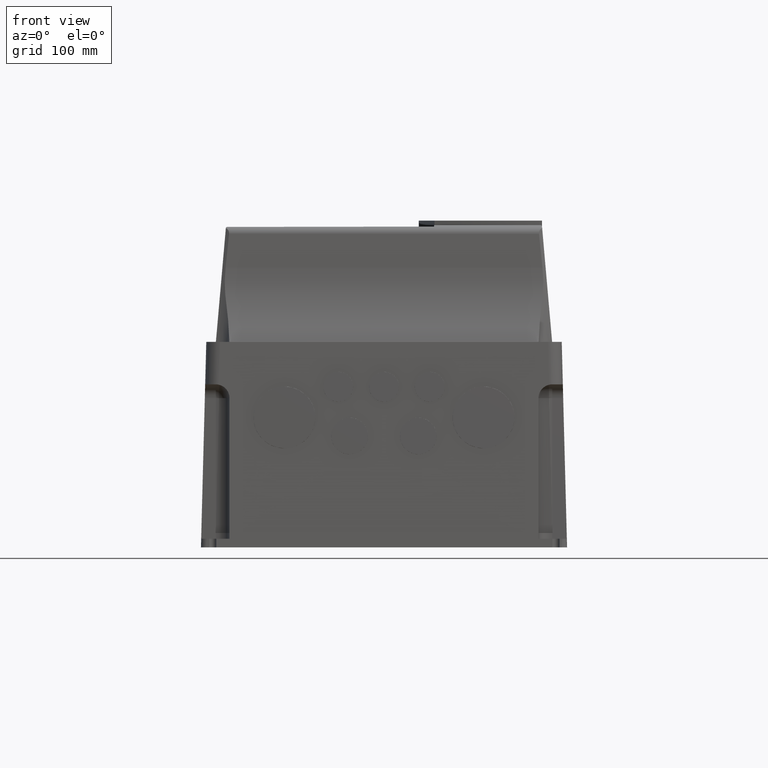
[diagram: clean part render]
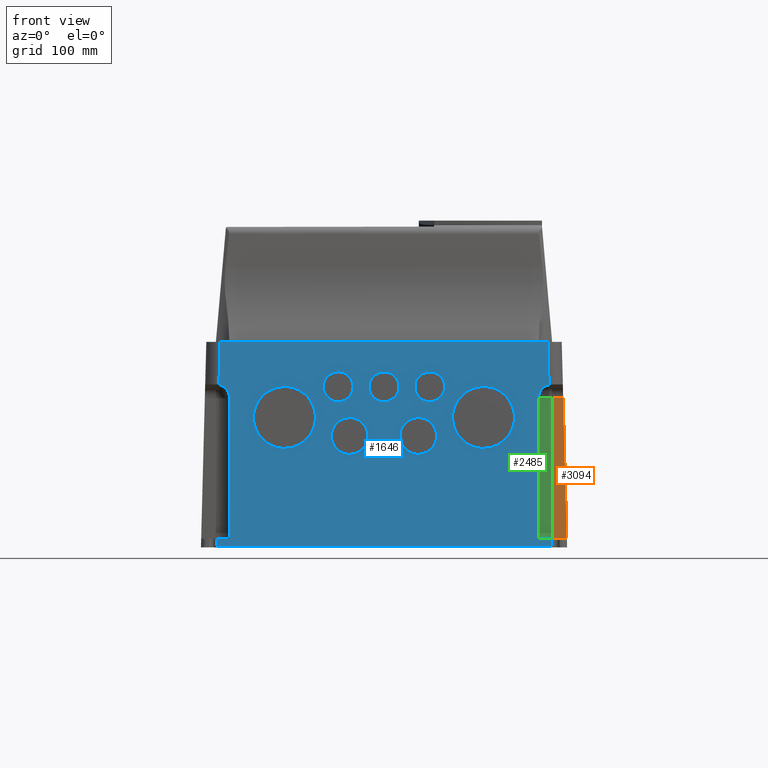
[diagram: same view with three faces highlighted in distinct colors, each labeled with its STEP entity id]
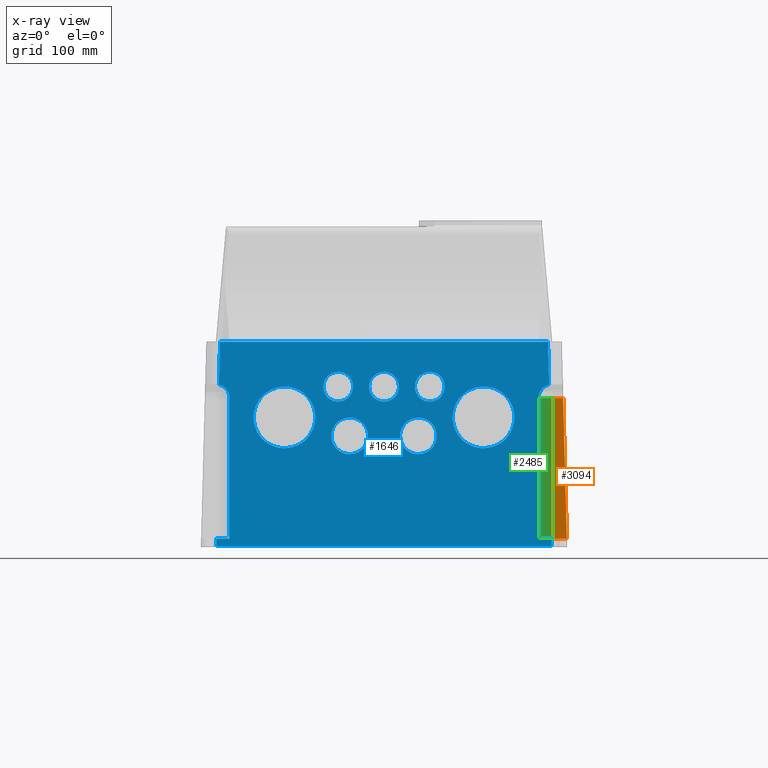
[diagram: x-ray of the same camera — body ghosted, the three highlighted faces saturated]
A machine part, front view with three faces highlighted in distinct colors.
The next image is the same camera in x-ray (body ghosted, the three faces saturated) — at least one of them is partly hidden behind the body in this view.
Their STEP definitions:

[orange] entity #3094 — the highlighted planar face has unit normal (0, 1, 0).
#22 = VECTOR ( 'NONE', #3410, 39.37007874015748143 ) ;
#110 = VECTOR ( 'NONE', #546, 39.37007874015748143 ) ;
#182 = LINE ( 'NONE', #2601, #1906 ) ;
#201 = EDGE_CURVE ( 'NONE', #3391, #3291, #182, .T. ) ;
#333 = EDGE_CURVE ( 'NONE', #3291, #3249, #3661, .T. ) ;
#417 = DIRECTION ( 'NONE',  ( -0.02601673063986719228, 0.000000000000000000, 0.9996615075748453982 ) ) ;
#491 = CARTESIAN_POINT ( 'NONE',  ( 5.787401574803155313, -8.346456692913383435, 5.137795275590551825 ) ) ;
#530 = ORIENTED_EDGE ( 'NONE', *, *, #333, .F. ) ;
#546 = DIRECTION ( 'NONE',  ( 0.000000000000000000, -0.000000000000000000, 1.000000000000000000 ) ) ;
#674 = DIRECTION ( 'NONE',  ( 0.000000000000000000, -0.000000000000000000, 1.000000000000000000 ) ) ;
#723 = EDGE_LOOP ( 'NONE', ( #3799, #530, #1268, #1525 ) ) ;
#993 = PLANE ( 'NONE',  #997 ) ;
#997 = AXIS2_PLACEMENT_3D ( 'NONE', #2235, #3465, #674 ) ;
#1013 = EDGE_CURVE ( 'NONE', #3391, #2149, #3182, .T. ) ;
#1055 = CARTESIAN_POINT ( 'NONE',  ( 6.299212598425197207, -8.346456692913383435, 0.000000000000000000 ) ) ;
#1187 = EDGE_CURVE ( 'NONE', #2149, #3249, #3082, .T. ) ;
#1268 = ORIENTED_EDGE ( 'NONE', *, *, #201, .F. ) ;
#1452 = CARTESIAN_POINT ( 'NONE',  ( 5.787401574803155313, -8.346456692913383435, 0.2952755905511812995 ) ) ;
#1525 = ORIENTED_EDGE ( 'NONE', *, *, #1013, .T. ) ;
#1590 = CARTESIAN_POINT ( 'NONE',  ( 0.000000000000000000, -8.346456692913383435, 5.137795275590551825 ) ) ;
#1845 = CARTESIAN_POINT ( 'NONE',  ( 6.165498701516134439, -8.346456692913383435, 5.137795275590551825 ) ) ;
#1906 = VECTOR ( 'NONE', #2947, 39.37007874015748143 ) ;
#2070 = CARTESIAN_POINT ( 'NONE',  ( 5.787401574803155313, -8.346456692913383435, 5.610236220472442525 ) ) ;
#2149 = VERTEX_POINT ( 'NONE', #1845 ) ;
#2235 = CARTESIAN_POINT ( 'NONE',  ( 5.314960629921263724, -8.346456692913383435, 5.610236220472442525 ) ) ;
#2601 = CARTESIAN_POINT ( 'NONE',  ( 0.000000000000000000, -8.346456692913383435, 0.2952755905511810774 ) ) ;
#2705 = VECTOR ( 'NONE', #417, 39.37007874015748143 ) ;
#2745 = CARTESIAN_POINT ( 'NONE',  ( 6.291527891706285125, -8.346456692913383435, 0.2952755905511811330 ) ) ;
#2947 = DIRECTION ( 'NONE',  ( -1.000000000000000000, -0.000000000000000000, 0.000000000000000000 ) ) ;
#3082 = LINE ( 'NONE', #1590, #22 ) ;
#3094 = ADVANCED_FACE ( 'NONE', ( #3770 ), #993, .F. ) ;
#3182 = LINE ( 'NONE', #1055, #2705 ) ;
#3249 = VERTEX_POINT ( 'NONE', #491 ) ;
#3291 = VERTEX_POINT ( 'NONE', #1452 ) ;
#3391 = VERTEX_POINT ( 'NONE', #2745 ) ;
#3410 = DIRECTION ( 'NONE',  ( -1.000000000000000000, 0.000000000000000000, 0.000000000000000000 ) ) ;
#3465 = DIRECTION ( 'NONE',  ( 0.000000000000000000, 1.000000000000000000, 0.000000000000000000 ) ) ;
#3661 = LINE ( 'NONE', #2070, #110 ) ;
#3770 = FACE_OUTER_BOUND ( 'NONE', #723, .T. ) ;
#3799 = ORIENTED_EDGE ( 'NONE', *, *, #1187, .T. ) ;

[blue] entity #1646 — the highlighted planar face has unit normal (0, 0.9996, -0.0265).
#7 = DIRECTION ( 'NONE',  ( 0.000000000000000000, 0.02654542093371037650, 0.9996476082237439886 ) ) ;
#48 = CARTESIAN_POINT ( 'NONE',  ( -1.025685345641064394, -9.171454318879906253, 6.039906444342086012 ) ) ;
#58 = CARTESIAN_POINT ( 'NONE',  ( -1.574803149606299302, -9.198691166166481636, 5.014221098701022505 ) ) ;
#74 = EDGE_CURVE ( 'NONE', #910, #660, #3861, .T. ) ;
#89 = ORIENTED_EDGE ( 'NONE', *, *, #2587, .F. ) ;
#104 = EDGE_CURVE ( 'NONE', #321, #797, #2767, .T. ) ;
#128 = EDGE_CURVE ( 'NONE', #660, #910, #703, .T. ) ;
#137 =( BOUNDED_CURVE ( )  B_SPLINE_CURVE ( 3, ( #447, #2929, #1662, #3825 ),
 .UNSPECIFIED., .F., .T. ) 
 B_SPLINE_CURVE_WITH_KNOTS ( ( 4, 4 ),
 ( 3.368230027724629316, 4.712388980384689674 ),
 .UNSPECIFIED. ) 
 CURVE ( )  GEOMETRIC_REPRESENTATION_ITEM ( )  RATIONAL_B_SPLINE_CURVE ( ( 1.000000000000000000, 0.8550190976276198507, 0.8550190976276198507, 1.000000000000000000 ) ) 
 REPRESENTATION_ITEM ( '' )  );
#192 = EDGE_CURVE ( 'NONE', #2834, #2905, #1392, .T. ) ;
#230 = EDGE_CURVE ( 'NONE', #3176, #956, #1641, .T. ) ;
#248 = FACE_BOUND ( 'NONE', #780, .T. ) ;
#271 = ORIENTED_EDGE ( 'NONE', *, *, #1536, .F. ) ;
#274 = CARTESIAN_POINT ( 'NONE',  ( -11.81102362204724443, -9.324001719452017056, 0.2952755905511803003 ) ) ;
#321 = VERTEX_POINT ( 'NONE', #1463 ) ;
#331 = VERTEX_POINT ( 'NONE', #847 ) ;
#352 = CARTESIAN_POINT ( 'NONE',  ( -5.767716535433065062, -9.324001719452017056, 0.2952755905511807999 ) ) ;
#356 = CARTESIAN_POINT ( 'NONE',  ( -3.425196850393701808, -9.184823102415823115, 5.536464720064616429 ) ) ;
#374 = CARTESIAN_POINT ( 'NONE',  ( -1.297149300028227481, -9.241332934007154165, 3.408417169699141436 ) ) ;
#383 = EDGE_LOOP ( 'NONE', ( #518, #2678 ) ) ;
#399 =( BOUNDED_CURVE ( )  B_SPLINE_CURVE ( 3, ( #2244, #1039, #721, #3758 ),
 .UNSPECIFIED., .F., .F. ) 
 B_SPLINE_CURVE_WITH_KNOTS ( ( 4, 4 ),
 ( 3.141592653589793116, 6.283185307179586232 ),
 .UNSPECIFIED. ) 
 CURVE ( )  GEOMETRIC_REPRESENTATION_ITEM ( )  RATIONAL_B_SPLINE_CURVE ( ( 1.000000000000000000, 0.3333333333333333703, 0.3333333333333333703, 1.000000000000000000 ) ) 
 REPRESENTATION_ITEM ( '' )  );
#413 = CARTESIAN_POINT ( 'NONE',  ( 1.574803149606299080, -9.198691166166481636, 5.014221098701022505 ) ) ;
#426 = VERTEX_POINT ( 'NONE', #3686 ) ;
#434 = VERTEX_POINT ( 'NONE', #2227 ) ;
#447 = CARTESIAN_POINT ( 'NONE',  ( 5.681243071652172461, -9.183184938108572837, 5.598154720600247991 ) ) ;
#450 = VERTEX_POINT ( 'NONE', #722 ) ;
#482 = CARTESIAN_POINT ( 'NONE',  ( -5.681243071652176013, -9.183184938108572837, 5.598154720600250656 ) ) ;
#485 = CARTESIAN_POINT ( 'NONE',  ( -2.443008180286734721, -9.246782497524298705, 3.203197476653807385 ) ) ;
#513 = EDGE_CURVE ( 'NONE', #331, #3129, #3008, .T. ) ;
#518 = ORIENTED_EDGE ( 'NONE', *, *, #104, .F. ) ;
#529 =( BOUNDED_CURVE ( )  B_SPLINE_CURVE ( 3, ( #2435, #374, #2141, #356 ),
 .UNSPECIFIED., .F., .F. ) 
 B_SPLINE_CURVE_WITH_KNOTS ( ( 4, 4 ),
 ( 3.141592653589793560, 6.283185307179586232 ),
 .UNSPECIFIED. ) 
 CURVE ( )  GEOMETRIC_REPRESENTATION_ITEM ( )  RATIONAL_B_SPLINE_CURVE ( ( 1.000000000000000000, 0.3333333333333335369, 0.3333333333333335369, 1.000000000000000000 ) ) 
 REPRESENTATION_ITEM ( '' )  );
#590 = CARTESIAN_POINT ( 'NONE',  ( 0.5491178039652351295, -9.198691166166481636, 5.014221098701022505 ) ) ;
#592 = FACE_BOUND ( 'NONE', #1625, .T. ) ;
#606 = CARTESIAN_POINT ( 'NONE',  ( 1.574803149606299080, -9.171454318879906253, 6.039906444342086900 ) ) ;
#637 = DIRECTION ( 'NONE',  ( 0.000000000000000000, 0.02654542093371037650, 0.9996476082237439886 ) ) ;
#647 = CARTESIAN_POINT ( 'NONE',  ( 3.425196850393701808, -9.184823102415823115, 5.536464720064615541 ) ) ;
#649 = CARTESIAN_POINT ( 'NONE',  ( -1.574803149606299302, -9.171454318879906253, 6.039906444342086900 ) ) ;
#650 = EDGE_CURVE ( 'NONE', #2492, #1364, #2924, .T. ) ;
#660 = VERTEX_POINT ( 'NONE', #2318 ) ;
#687 = CARTESIAN_POINT ( 'NONE',  ( -0.08080345587728490764, -9.246782497524298705, 3.203197476653807829 ) ) ;
#703 =( BOUNDED_CURVE ( )  B_SPLINE_CURVE ( 3, ( #986, #2786, #3440, #649 ),
 .UNSPECIFIED., .F., .F. ) 
 B_SPLINE_CURVE_WITH_KNOTS ( ( 4, 4 ),
 ( 3.141592653589793560, 6.283185307179586232 ),
 .UNSPECIFIED. ) 
 CURVE ( )  GEOMETRIC_REPRESENTATION_ITEM ( )  RATIONAL_B_SPLINE_CURVE ( ( 1.000000000000000000, 0.3333333333333335369, 0.3333333333333335369, 1.000000000000000000 ) ) 
 REPRESENTATION_ITEM ( '' )  );
#721 = CARTESIAN_POINT ( 'NONE',  ( 2.443008180286732944, -9.213272867886704631, 4.465103294735817130 ) ) ;
#722 = CARTESIAN_POINT ( 'NONE',  ( -3.425196850393701808, -9.241332934007154165, 3.408417169699140992 ) ) ;
#725 = LINE ( 'NONE', #3236, #2788 ) ;
#747 = CARTESIAN_POINT ( 'NONE',  ( -5.767716535433065062, -9.324001719452017056, 0.2952755905511810774 ) ) ;
#752 = ORIENTED_EDGE ( 'NONE', *, *, #128, .F. ) ;
#778 = CARTESIAN_POINT ( 'NONE',  ( -5.314960629921258395, -9.195409681256116130, 5.137795275590551825 ) ) ;
#780 = EDGE_LOOP ( 'NONE', ( #1854, #2263 ) ) ;
#797 = VERTEX_POINT ( 'NONE', #2736 ) ;
#823 = CARTESIAN_POINT ( 'NONE',  ( -5.314960629921258395, -9.189319328777544982, 5.367145802886635231 ) ) ;
#847 = CARTESIAN_POINT ( 'NONE',  ( 1.574803149606299080, -9.171454318879906253, 6.039906444342086900 ) ) ;
#852 = FACE_BOUND ( 'NONE', #1438, .T. ) ;
#868 = VECTOR ( 'NONE', #3752, 39.37007874015748143 ) ;
#904 = CARTESIAN_POINT ( 'NONE',  ( 2.600488495247363030, -9.171454318879906253, 6.039906444342086012 ) ) ;
#910 = VERTEX_POINT ( 'NONE', #1537 ) ;
#956 = VERTEX_POINT ( 'NONE', #1355 ) ;
#969 = CARTESIAN_POINT ( 'NONE',  ( 1.181102362204723866, -9.213272867886704631, 4.465103294735817130 ) ) ;
#986 = CARTESIAN_POINT ( 'NONE',  ( -1.574803149606299302, -9.198691166166481636, 5.014221098701022505 ) ) ;
#1025 = CARTESIAN_POINT ( 'NONE',  ( -2.600488495247363474, -9.198691166166481636, 5.014221098701022505 ) ) ;
#1027 = VERTEX_POINT ( 'NONE', #3892 ) ;
#1039 = CARTESIAN_POINT ( 'NONE',  ( 2.443008180286732944, -9.246782497524298705, 3.203197476653807829 ) ) ;
#1040 = CARTESIAN_POINT ( 'NONE',  ( 5.642914961523374906, -9.144077412350272382, 7.070866141732283339 ) ) ;
#1063 = ORIENTED_EDGE ( 'NONE', *, *, #192, .F. ) ;
#1075 = LINE ( 'NONE', #3524, #2397 ) ;
#1105 = ORIENTED_EDGE ( 'NONE', *, *, #230, .T. ) ;
#1140 = EDGE_CURVE ( 'NONE', #450, #1530, #529, .T. ) ;
#1150 = CARTESIAN_POINT ( 'NONE',  ( -1.181102362204724976, -9.213272867886704631, 4.465103294735818018 ) ) ;
#1156 = CARTESIAN_POINT ( 'NONE',  ( -3.425196850393701808, -9.184823102415823115, 5.536464720064616429 ) ) ;
#1163 = CARTESIAN_POINT ( 'NONE',  ( -1.181102362204724754, -9.246782497524296929, 3.203197476653807385 ) ) ;
#1202 = DIRECTION ( 'NONE',  ( 1.000000000000000000, -0.000000000000000000, 0.000000000000000000 ) ) ;
#1216 = LINE ( 'NONE', #274, #3305 ) ;
#1222 = LINE ( 'NONE', #1562, #1247 ) ;
#1247 = VECTOR ( 'NONE', #1202, 39.37007874015748143 ) ;
#1257 = LINE ( 'NONE', #2477, #2854 ) ;
#1277 = CARTESIAN_POINT ( 'NONE',  ( -1.025685345641064394, -9.198691166166481636, 5.014221098701022505 ) ) ;
#1287 = CARTESIAN_POINT ( 'NONE',  ( -2.600488495247364806, -9.171454318879906253, 6.039906444342086900 ) ) ;
#1306 = VERTEX_POINT ( 'NONE', #3334 ) ;
#1320 = ORIENTED_EDGE ( 'NONE', *, *, #3644, .F. ) ;
#1333 = CARTESIAN_POINT ( 'NONE',  ( -1.181102362204724754, -9.246782497524296929, 3.203197476653807385 ) ) ;
#1355 = CARTESIAN_POINT ( 'NONE',  ( -5.767716535433065062, -9.330708661417324024, 0.04270553295609030853 ) ) ;
#1364 = VERTEX_POINT ( 'NONE', #1820 ) ;
#1388 = VERTEX_POINT ( 'NONE', #2440 ) ;
#1390 = ORIENTED_EDGE ( 'NONE', *, *, #513, .F. ) ;
#1392 =( BOUNDED_CURVE ( )  B_SPLINE_CURVE ( 3, ( #1988, #2928, #2264, #1661 ),
 .UNSPECIFIED., .F., .F. ) 
 B_SPLINE_CURVE_WITH_KNOTS ( ( 4, 4 ),
 ( 3.141592653589793116, 6.283185307179586232 ),
 .UNSPECIFIED. ) 
 CURVE ( )  GEOMETRIC_REPRESENTATION_ITEM ( )  RATIONAL_B_SPLINE_CURVE ( ( 1.000000000000000000, 0.3333333333333333703, 0.3333333333333333703, 1.000000000000000000 ) ) 
 REPRESENTATION_ITEM ( '' )  );
#1411 = FACE_BOUND ( 'NONE', #3488, .T. ) ;
#1412 = CARTESIAN_POINT ( 'NONE',  ( 3.425196850393701808, -9.241332934007154165, 3.408417169699141880 ) ) ;
#1438 = EDGE_LOOP ( 'NONE', ( #1990, #1063 ) ) ;
#1463 = CARTESIAN_POINT ( 'NONE',  ( 1.181102362204723866, -9.213272867886704631, 4.465103294735817130 ) ) ;
#1512 = CARTESIAN_POINT ( 'NONE',  ( 3.425196850393701808, -9.184823102415823115, 5.536464720064615541 ) ) ;
#1530 = VERTEX_POINT ( 'NONE', #1772 ) ;
#1536 = EDGE_CURVE ( 'NONE', #1659, #2813, #1933, .T. ) ;
#1537 = CARTESIAN_POINT ( 'NONE',  ( -1.574803149606299302, -9.171454318879906253, 6.039906444342086900 ) ) ;
#1562 = CARTESIAN_POINT ( 'NONE',  ( -11.81102362204724443, -9.144077412350272382, 7.070866141732283339 ) ) ;
#1564 = AXIS2_PLACEMENT_3D ( 'NONE', #3729, #2215, #7 ) ;
#1566 = CARTESIAN_POINT ( 'NONE',  ( 1.181102362204724088, -9.246782497524296929, 3.203197476653807385 ) ) ;
#1583 = VECTOR ( 'NONE', #3859, 39.37007874015748143 ) ;
#1623 = EDGE_CURVE ( 'NONE', #1530, #450, #3818, .T. ) ;
#1625 = EDGE_LOOP ( 'NONE', ( #3206, #752 ) ) ;
#1641 = LINE ( 'NONE', #747, #1583 ) ;
#1646 = ADVANCED_FACE ( 'NONE', ( #3910, #248, #2370, #3605, #592, #852, #3304, #1411 ), #1808, .F. ) ;
#1659 = VERTEX_POINT ( 'NONE', #1512 ) ;
#1661 = CARTESIAN_POINT ( 'NONE',  ( -2.646670146222828125E-16, -9.171454318879906253, 6.039906444342086900 ) ) ;
#1662 = CARTESIAN_POINT ( 'NONE',  ( 5.314960629921264612, -9.189319328777544982, 5.367145802886630790 ) ) ;
#1687 = ORIENTED_EDGE ( 'NONE', *, *, #2248, .F. ) ;
#1698 = EDGE_CURVE ( 'NONE', #434, #1027, #2766, .T. ) ;
#1772 = CARTESIAN_POINT ( 'NONE',  ( -3.425196850393701808, -9.184823102415823115, 5.536464720064616429 ) ) ;
#1808 = PLANE ( 'NONE',  #1564 ) ;
#1817 = VERTEX_POINT ( 'NONE', #3153 ) ;
#1818 = VECTOR ( 'NONE', #3659, 39.37007874015748143 ) ;
#1820 = CARTESIAN_POINT ( 'NONE',  ( 5.681243071652172461, -9.183184938108572837, 5.598154720600247991 ) ) ;
#1854 = ORIENTED_EDGE ( 'NONE', *, *, #1623, .F. ) ;
#1856 = EDGE_LOOP ( 'NONE', ( #1390, #1687 ) ) ;
#1868 = VERTEX_POINT ( 'NONE', #3922 ) ;
#1905 = ORIENTED_EDGE ( 'NONE', *, *, #2237, .F. ) ;
#1933 =( BOUNDED_CURVE ( )  B_SPLINE_CURVE ( 3, ( #2354, #2389, #3326, #3628 ),
 .UNSPECIFIED., .F., .F. ) 
 B_SPLINE_CURVE_WITH_KNOTS ( ( 4, 4 ),
 ( 0.000000000000000000, 3.141592653589793560 ),
 .UNSPECIFIED. ) 
 CURVE ( )  GEOMETRIC_REPRESENTATION_ITEM ( )  RATIONAL_B_SPLINE_CURVE ( ( 1.000000000000000000, 0.3333333333333332038, 0.3333333333333332038, 1.000000000000000000 ) ) 
 REPRESENTATION_ITEM ( '' )  );
#1951 = DIRECTION ( 'NONE',  ( 0.02600756876027013678, 0.02653644183825283262, 0.9993094733973778565 ) ) ;
#1975 = ORIENTED_EDGE ( 'NONE', *, *, #2213, .F. ) ;
#1988 = CARTESIAN_POINT ( 'NONE',  ( -2.018619008486990307E-16, -9.198691166166481636, 5.014221098701022505 ) ) ;
#1990 = ORIENTED_EDGE ( 'NONE', *, *, #3172, .F. ) ;
#1996 = DIRECTION ( 'NONE',  ( 1.000000000000000000, -0.000000000000000000, 0.000000000000000000 ) ) ;
#2018 = CARTESIAN_POINT ( 'NONE',  ( -2.018619008486990307E-16, -9.198691166166481636, 5.014221098701022505 ) ) ;
#2033 = EDGE_LOOP ( 'NONE', ( #1105, #3595, #2415, #89, #1905, #1320, #3417, #2114, #3067, #2844, #3803, #2778 ) ) ;
#2057 = CARTESIAN_POINT ( 'NONE',  ( -5.553244400759178134, -9.241332934007154165, 3.408417169699140103 ) ) ;
#2058 = EDGE_CURVE ( 'NONE', #2731, #3046, #2172, .T. ) ;
#2094 = EDGE_CURVE ( 'NONE', #3046, #2731, #2986, .T. ) ;
#2109 = CARTESIAN_POINT ( 'NONE',  ( 5.553244400759173693, -9.241332934007154165, 3.408417169699141880 ) ) ;
#2114 = ORIENTED_EDGE ( 'NONE', *, *, #2144, .F. ) ;
#2128 = CARTESIAN_POINT ( 'NONE',  ( 5.314960629921262836, -9.144077412350272382, 7.070866141732283339 ) ) ;
#2141 = CARTESIAN_POINT ( 'NONE',  ( -1.297149300028227925, -9.184823102415821339, 5.536464720064616429 ) ) ;
#2144 = EDGE_CURVE ( 'NONE', #1817, #2492, #1222, .T. ) ;
#2172 =( BOUNDED_CURVE ( )  B_SPLINE_CURVE ( 3, ( #2600, #2988, #3840, #1150 ),
 .UNSPECIFIED., .F., .T. ) 
 B_SPLINE_CURVE_WITH_KNOTS ( ( 4, 4 ),
 ( 3.141592653589793116, 6.283185307179586232 ),
 .UNSPECIFIED. ) 
 CURVE ( )  GEOMETRIC_REPRESENTATION_ITEM ( )  RATIONAL_B_SPLINE_CURVE ( ( 1.000000000000000000, 0.3333333333333333703, 0.3333333333333333703, 1.000000000000000000 ) ) 
 REPRESENTATION_ITEM ( '' )  );
#2178 = CARTESIAN_POINT ( 'NONE',  ( -2.646670146222828125E-16, -9.171454318879906253, 6.039906444342086900 ) ) ;
#2188 = CARTESIAN_POINT ( 'NONE',  ( -0.08080345587728476886, -9.213272867886704631, 4.465103294735817130 ) ) ;
#2213 = EDGE_CURVE ( 'NONE', #2813, #1659, #2291, .T. ) ;
#2215 = DIRECTION ( 'NONE',  ( 0.000000000000000000, 0.9996476082237440997, -0.02654542093371037997 ) ) ;
#2227 = CARTESIAN_POINT ( 'NONE',  ( -5.314960629921258395, -9.324001719452017056, 0.2952755905511803558 ) ) ;
#2237 = EDGE_CURVE ( 'NONE', #1868, #2583, #3936, .T. ) ;
#2244 = CARTESIAN_POINT ( 'NONE',  ( 1.181102362204724088, -9.246782497524296929, 3.203197476653807385 ) ) ;
#2248 = EDGE_CURVE ( 'NONE', #3129, #331, #2470, .T. ) ;
#2263 = ORIENTED_EDGE ( 'NONE', *, *, #1140, .F. ) ;
#2264 = CARTESIAN_POINT ( 'NONE',  ( 1.025685345641063728, -9.171454318879906253, 6.039906444342086012 ) ) ;
#2286 = VECTOR ( 'NONE', #2944, 39.37007874015748854 ) ;
#2291 =( BOUNDED_CURVE ( )  B_SPLINE_CURVE ( 3, ( #3005, #2109, #3678, #647 ),
 .UNSPECIFIED., .F., .F. ) 
 B_SPLINE_CURVE_WITH_KNOTS ( ( 4, 4 ),
 ( 3.141592653589793560, 6.283185307179586232 ),
 .UNSPECIFIED. ) 
 CURVE ( )  GEOMETRIC_REPRESENTATION_ITEM ( )  RATIONAL_B_SPLINE_CURVE ( ( 1.000000000000000000, 0.3333333333333335369, 0.3333333333333335369, 1.000000000000000000 ) ) 
 REPRESENTATION_ITEM ( '' )  );
#2318 = CARTESIAN_POINT ( 'NONE',  ( -1.574803149606299302, -9.198691166166481636, 5.014221098701022505 ) ) ;
#2354 = CARTESIAN_POINT ( 'NONE',  ( 3.425196850393701808, -9.184823102415823115, 5.536464720064615541 ) ) ;
#2355 = CARTESIAN_POINT ( 'NONE',  ( -2.646670146222828125E-16, -9.171454318879906253, 6.039906444342086900 ) ) ;
#2358 = EDGE_CURVE ( 'NONE', #797, #321, #399, .T. ) ;
#2370 = FACE_BOUND ( 'NONE', #383, .T. ) ;
#2389 = CARTESIAN_POINT ( 'NONE',  ( 1.297149300028227037, -9.184823102415819562, 5.536464720064615541 ) ) ;
#2397 = VECTOR ( 'NONE', #1996, 39.37007874015748143 ) ;
#2415 = ORIENTED_EDGE ( 'NONE', *, *, #2770, .T. ) ;
#2428 = CARTESIAN_POINT ( 'NONE',  ( 0.5491178039652351295, -9.171454318879906253, 6.039906444342086012 ) ) ;
#2435 = CARTESIAN_POINT ( 'NONE',  ( -3.425196850393701808, -9.241332934007154165, 3.408417169699140992 ) ) ;
#2440 = CARTESIAN_POINT ( 'NONE',  ( 5.767716535433063285, -9.324001719452017056, 0.2952755905511807999 ) ) ;
#2446 = CARTESIAN_POINT ( 'NONE',  ( 1.574803149606299080, -9.171454318879906253, 6.039906444342086900 ) ) ;
#2470 =( BOUNDED_CURVE ( )  B_SPLINE_CURVE ( 3, ( #2720, #3958, #904, #606 ),
 .UNSPECIFIED., .F., .F. ) 
 B_SPLINE_CURVE_WITH_KNOTS ( ( 4, 4 ),
 ( 3.141592653589793116, 6.283185307179586232 ),
 .UNSPECIFIED. ) 
 CURVE ( )  GEOMETRIC_REPRESENTATION_ITEM ( )  RATIONAL_B_SPLINE_CURVE ( ( 1.000000000000000000, 0.3333333333333333703, 0.3333333333333333703, 1.000000000000000000 ) ) 
 REPRESENTATION_ITEM ( '' )  );
#2473 = EDGE_CURVE ( 'NONE', #1027, #426, #3717, .T. ) ;
#2477 = CARTESIAN_POINT ( 'NONE',  ( -6.299212598425197207, -9.330708661417324024, 0.04270553295609029465 ) ) ;
#2492 = VERTEX_POINT ( 'NONE', #3252 ) ;
#2566 =( BOUNDED_CURVE ( )  B_SPLINE_CURVE ( 3, ( #2178, #48, #1277, #3847 ),
 .UNSPECIFIED., .F., .F. ) 
 B_SPLINE_CURVE_WITH_KNOTS ( ( 4, 4 ),
 ( 0.000000000000000000, 3.141592653589793116 ),
 .UNSPECIFIED. ) 
 CURVE ( )  GEOMETRIC_REPRESENTATION_ITEM ( )  RATIONAL_B_SPLINE_CURVE ( ( 1.000000000000000000, 0.3333333333333333703, 0.3333333333333333703, 1.000000000000000000 ) ) 
 REPRESENTATION_ITEM ( '' )  );
#2583 = VERTEX_POINT ( 'NONE', #2692 ) ;
#2587 = EDGE_CURVE ( 'NONE', #2583, #1388, #1216, .T. ) ;
#2600 = CARTESIAN_POINT ( 'NONE',  ( -1.181102362204724754, -9.246782497524296929, 3.203197476653807385 ) ) ;
#2678 = ORIENTED_EDGE ( 'NONE', *, *, #2358, .F. ) ;
#2682 = CARTESIAN_POINT ( 'NONE',  ( -1.181102362204724976, -9.213272867886704631, 4.465103294735818018 ) ) ;
#2692 = CARTESIAN_POINT ( 'NONE',  ( 5.314960629921262836, -9.324001719452017056, 0.2952755905511803558 ) ) ;
#2720 = CARTESIAN_POINT ( 'NONE',  ( 1.574803149606299080, -9.198691166166481636, 5.014221098701022505 ) ) ;
#2731 = VERTEX_POINT ( 'NONE', #1333 ) ;
#2736 = CARTESIAN_POINT ( 'NONE',  ( 1.181102362204724088, -9.246782497524296929, 3.203197476653807385 ) ) ;
#2766 = LINE ( 'NONE', #3421, #3102 ) ;
#2767 =( BOUNDED_CURVE ( )  B_SPLINE_CURVE ( 3, ( #969, #2188, #687, #1566 ),
 .UNSPECIFIED., .F., .F. ) 
 B_SPLINE_CURVE_WITH_KNOTS ( ( 4, 4 ),
 ( 0.000000000000000000, 3.141592653589793116 ),
 .UNSPECIFIED. ) 
 CURVE ( )  GEOMETRIC_REPRESENTATION_ITEM ( )  RATIONAL_B_SPLINE_CURVE ( ( 1.000000000000000000, 0.3333333333333333703, 0.3333333333333333703, 1.000000000000000000 ) ) 
 REPRESENTATION_ITEM ( '' )  );
#2770 = EDGE_CURVE ( 'NONE', #1306, #1388, #2829, .T. ) ;
#2778 = ORIENTED_EDGE ( 'NONE', *, *, #2828, .F. ) ;
#2786 = CARTESIAN_POINT ( 'NONE',  ( -0.5491178039652360177, -9.198691166166481636, 5.014221098701022505 ) ) ;
#2788 = VECTOR ( 'NONE', #1951, 39.37007874015748854 ) ;
#2792 = CARTESIAN_POINT ( 'NONE',  ( -1.181102362204724976, -9.213272867886704631, 4.465103294735818018 ) ) ;
#2813 = VERTEX_POINT ( 'NONE', #1412 ) ;
#2828 = EDGE_CURVE ( 'NONE', #3176, #434, #1075, .T. ) ;
#2829 = LINE ( 'NONE', #3083, #868 ) ;
#2834 = VERTEX_POINT ( 'NONE', #2018 ) ;
#2844 = ORIENTED_EDGE ( 'NONE', *, *, #2473, .F. ) ;
#2854 = VECTOR ( 'NONE', #3714, 39.37007874015748143 ) ;
#2905 = VERTEX_POINT ( 'NONE', #2355 ) ;
#2924 = LINE ( 'NONE', #1040, #2286 ) ;
#2928 = CARTESIAN_POINT ( 'NONE',  ( 1.025685345641063506, -9.198691166166481636, 5.014221098701022505 ) ) ;
#2929 = CARTESIAN_POINT ( 'NONE',  ( 5.457757612564584804, -9.184553453496139497, 5.546619160572261009 ) ) ;
#2944 = DIRECTION ( 'NONE',  ( 0.02600756876026936310, -0.02653644183825279446, -0.9993094733973780786 ) ) ;
#2986 =( BOUNDED_CURVE ( )  B_SPLINE_CURVE ( 3, ( #2682, #3919, #485, #1163 ),
 .UNSPECIFIED., .F., .F. ) 
 B_SPLINE_CURVE_WITH_KNOTS ( ( 4, 4 ),
 ( 0.000000000000000000, 3.141592653589793116 ),
 .UNSPECIFIED. ) 
 CURVE ( )  GEOMETRIC_REPRESENTATION_ITEM ( )  RATIONAL_B_SPLINE_CURVE ( ( 1.000000000000000000, 0.3333333333333333703, 0.3333333333333333703, 1.000000000000000000 ) ) 
 REPRESENTATION_ITEM ( '' )  );
#2988 = CARTESIAN_POINT ( 'NONE',  ( 0.08080345587728504642, -9.246782497524298705, 3.203197476653807385 ) ) ;
#3005 = CARTESIAN_POINT ( 'NONE',  ( 3.425196850393701808, -9.241332934007154165, 3.408417169699141880 ) ) ;
#3008 =( BOUNDED_CURVE ( )  B_SPLINE_CURVE ( 3, ( #2446, #2428, #590, #3031 ),
 .UNSPECIFIED., .F., .F. ) 
 B_SPLINE_CURVE_WITH_KNOTS ( ( 4, 4 ),
 ( 0.000000000000000000, 3.141592653589793116 ),
 .UNSPECIFIED. ) 
 CURVE ( )  GEOMETRIC_REPRESENTATION_ITEM ( )  RATIONAL_B_SPLINE_CURVE ( ( 1.000000000000000000, 0.3333333333333333703, 0.3333333333333333703, 1.000000000000000000 ) ) 
 REPRESENTATION_ITEM ( '' )  );
#3031 = CARTESIAN_POINT ( 'NONE',  ( 1.574803149606299080, -9.198691166166481636, 5.014221098701022505 ) ) ;
#3046 = VERTEX_POINT ( 'NONE', #2792 ) ;
#3067 = ORIENTED_EDGE ( 'NONE', *, *, #3600, .F. ) ;
#3083 = CARTESIAN_POINT ( 'NONE',  ( 5.767716535433063285, -9.330708661417324024, 0.04270553295609139099 ) ) ;
#3102 = VECTOR ( 'NONE', #637, 39.37007874015748143 ) ;
#3129 = VERTEX_POINT ( 'NONE', #413 ) ;
#3153 = CARTESIAN_POINT ( 'NONE',  ( -5.642914961523377571, -9.144077412350272382, 7.070866141732303767 ) ) ;
#3166 = EDGE_CURVE ( 'NONE', #956, #1306, #1257, .T. ) ;
#3172 = EDGE_CURVE ( 'NONE', #2905, #2834, #2566, .T. ) ;
#3176 = VERTEX_POINT ( 'NONE', #352 ) ;
#3206 = ORIENTED_EDGE ( 'NONE', *, *, #74, .F. ) ;
#3232 = ORIENTED_EDGE ( 'NONE', *, *, #2094, .F. ) ;
#3236 = CARTESIAN_POINT ( 'NONE',  ( -5.681243071652176013, -9.183184938108572837, 5.598154720600249767 ) ) ;
#3252 = CARTESIAN_POINT ( 'NONE',  ( 5.642914961523374906, -9.144077412350272382, 7.070866141732284227 ) ) ;
#3282 = CARTESIAN_POINT ( 'NONE',  ( -3.425196850393701808, -9.241332934007154165, 3.408417169699140992 ) ) ;
#3304 = FACE_BOUND ( 'NONE', #1856, .T. ) ;
#3305 = VECTOR ( 'NONE', #3929, 39.37007874015748143 ) ;
#3326 = CARTESIAN_POINT ( 'NONE',  ( 1.297149300028227703, -9.241332934007154165, 3.408417169699141880 ) ) ;
#3334 = CARTESIAN_POINT ( 'NONE',  ( 5.767716535433061509, -9.330708661417324024, 0.04270553295609029465 ) ) ;
#3417 = ORIENTED_EDGE ( 'NONE', *, *, #650, .F. ) ;
#3421 = CARTESIAN_POINT ( 'NONE',  ( -5.314960629921258395, -9.144077412350272382, 7.070866141732283339 ) ) ;
#3440 = CARTESIAN_POINT ( 'NONE',  ( -0.5491178039652361287, -9.171454318879906253, 6.039906444342086900 ) ) ;
#3488 = EDGE_LOOP ( 'NONE', ( #271, #1975 ) ) ;
#3524 = CARTESIAN_POINT ( 'NONE',  ( -11.81102362204724443, -9.324001719452017056, 0.2952755905511803003 ) ) ;
#3529 = CARTESIAN_POINT ( 'NONE',  ( -5.457757612564580363, -9.184553453496139497, 5.546619160572266338 ) ) ;
#3595 = ORIENTED_EDGE ( 'NONE', *, *, #3166, .T. ) ;
#3600 = EDGE_CURVE ( 'NONE', #426, #1817, #725, .T. ) ;
#3605 = FACE_BOUND ( 'NONE', #3701, .T. ) ;
#3628 = CARTESIAN_POINT ( 'NONE',  ( 3.425196850393701808, -9.241332934007154165, 3.408417169699141880 ) ) ;
#3644 = EDGE_CURVE ( 'NONE', #1364, #1868, #137, .T. ) ;
#3659 = DIRECTION ( 'NONE',  ( -0.000000000000000000, -0.02654542093371037650, -0.9996476082237439886 ) ) ;
#3678 = CARTESIAN_POINT ( 'NONE',  ( 5.553244400759172805, -9.184823102415821339, 5.536464720064615541 ) ) ;
#3686 = CARTESIAN_POINT ( 'NONE',  ( -5.681243071652176013, -9.183184938108572837, 5.598154720600250656 ) ) ;
#3701 = EDGE_LOOP ( 'NONE', ( #3232, #3786 ) ) ;
#3708 = CARTESIAN_POINT ( 'NONE',  ( -1.574803149606299302, -9.171454318879906253, 6.039906444342086900 ) ) ;
#3714 = DIRECTION ( 'NONE',  ( 1.000000000000000000, 0.000000000000000000, -0.000000000000000000 ) ) ;
#3717 =( BOUNDED_CURVE ( )  B_SPLINE_CURVE ( 3, ( #778, #823, #3529, #482 ),
 .UNSPECIFIED., .F., .F. ) 
 B_SPLINE_CURVE_WITH_KNOTS ( ( 4, 4 ),
 ( 4.712388980384689674, 6.056547933044771348 ),
 .UNSPECIFIED. ) 
 CURVE ( )  GEOMETRIC_REPRESENTATION_ITEM ( )  RATIONAL_B_SPLINE_CURVE ( ( 1.000000000000000000, 0.8550190976276154098, 0.8550190976276154098, 1.000000000000000000 ) ) 
 REPRESENTATION_ITEM ( '' )  );
#3729 = CARTESIAN_POINT ( 'NONE',  ( -11.81102362204724443, -9.144077412350272382, 7.070866141732283339 ) ) ;
#3752 = DIRECTION ( 'NONE',  ( 0.000000000000000000, 0.02654542093371690253, 0.9996476082237438776 ) ) ;
#3758 = CARTESIAN_POINT ( 'NONE',  ( 1.181102362204723866, -9.213272867886704631, 4.465103294735817130 ) ) ;
#3786 = ORIENTED_EDGE ( 'NONE', *, *, #2058, .F. ) ;
#3803 = ORIENTED_EDGE ( 'NONE', *, *, #1698, .F. ) ;
#3818 =( BOUNDED_CURVE ( )  B_SPLINE_CURVE ( 3, ( #1156, #3925, #2057, #3282 ),
 .UNSPECIFIED., .F., .F. ) 
 B_SPLINE_CURVE_WITH_KNOTS ( ( 4, 4 ),
 ( 0.000000000000000000, 3.141592653589793560 ),
 .UNSPECIFIED. ) 
 CURVE ( )  GEOMETRIC_REPRESENTATION_ITEM ( )  RATIONAL_B_SPLINE_CURVE ( ( 1.000000000000000000, 0.3333333333333332038, 0.3333333333333332038, 1.000000000000000000 ) ) 
 REPRESENTATION_ITEM ( '' )  );
#3825 = CARTESIAN_POINT ( 'NONE',  ( 5.314960629921263724, -9.195409681256116130, 5.137795275590551825 ) ) ;
#3840 = CARTESIAN_POINT ( 'NONE',  ( 0.08080345587728518519, -9.213272867886704631, 4.465103294735818018 ) ) ;
#3847 = CARTESIAN_POINT ( 'NONE',  ( -2.018619008486990307E-16, -9.198691166166481636, 5.014221098701022505 ) ) ;
#3859 = DIRECTION ( 'NONE',  ( 0.000000000000000000, -0.02654542093371690253, -0.9996476082237438776 ) ) ;
#3861 =( BOUNDED_CURVE ( )  B_SPLINE_CURVE ( 3, ( #3708, #1287, #1025, #58 ),
 .UNSPECIFIED., .F., .F. ) 
 B_SPLINE_CURVE_WITH_KNOTS ( ( 4, 4 ),
 ( 0.000000000000000000, 3.141592653589793560 ),
 .UNSPECIFIED. ) 
 CURVE ( )  GEOMETRIC_REPRESENTATION_ITEM ( )  RATIONAL_B_SPLINE_CURVE ( ( 1.000000000000000000, 0.3333333333333332038, 0.3333333333333332038, 1.000000000000000000 ) ) 
 REPRESENTATION_ITEM ( '' )  );
#3892 = CARTESIAN_POINT ( 'NONE',  ( -5.314960629921258395, -9.195409681256116130, 5.137795275590551825 ) ) ;
#3910 = FACE_OUTER_BOUND ( 'NONE', #2033, .T. ) ;
#3919 = CARTESIAN_POINT ( 'NONE',  ( -2.443008180286734721, -9.213272867886704631, 4.465103294735818018 ) ) ;
#3922 = CARTESIAN_POINT ( 'NONE',  ( 5.314960629921263724, -9.195409681256116130, 5.137795275590551825 ) ) ;
#3925 = CARTESIAN_POINT ( 'NONE',  ( -5.553244400759178134, -9.184823102415819562, 5.536464720064617318 ) ) ;
#3929 = DIRECTION ( 'NONE',  ( 1.000000000000000000, -0.000000000000000000, 0.000000000000000000 ) ) ;
#3936 = LINE ( 'NONE', #2128, #1818 ) ;
#3958 = CARTESIAN_POINT ( 'NONE',  ( 2.600488495247363030, -9.198691166166481636, 5.014221098701022505 ) ) ;

[green] entity #2485 — the highlighted cylindrical surface (edge-blend (fillet) strip) has radius 12 mm, axis along (0, 0, 1).
#110 = VECTOR ( 'NONE', #546, 39.37007874015748143 ) ;
#134 = ORIENTED_EDGE ( 'NONE', *, *, #1031, .F. ) ;
#333 = EDGE_CURVE ( 'NONE', #3291, #3249, #3661, .T. ) ;
#491 = CARTESIAN_POINT ( 'NONE',  ( 5.787401574803155313, -8.346456692913383435, 5.137795275590551825 ) ) ;
#546 = DIRECTION ( 'NONE',  ( 0.000000000000000000, -0.000000000000000000, 1.000000000000000000 ) ) ;
#682 = EDGE_LOOP ( 'NONE', ( #2891, #1281, #3267, #134 ) ) ;
#726 = CIRCLE ( 'NONE', #1557, 0.4724409448818902013 ) ;
#745 = VERTEX_POINT ( 'NONE', #2437 ) ;
#794 = AXIS2_PLACEMENT_3D ( 'NONE', #3328, #2356, #1142 ) ;
#801 = DIRECTION ( 'NONE',  ( 1.000000000000000000, 0.000000000000000000, 0.000000000000000000 ) ) ;
#1031 = EDGE_CURVE ( 'NONE', #3291, #745, #3426, .T. ) ;
#1106 = CARTESIAN_POINT ( 'NONE',  ( 5.314960629921264612, -8.818897637795274136, 5.137795275590551825 ) ) ;
#1142 = DIRECTION ( 'NONE',  ( 1.000000000000000000, 0.000000000000000000, 0.000000000000000000 ) ) ;
#1262 = CARTESIAN_POINT ( 'NONE',  ( 5.314960629921263724, -8.818897637795274136, 5.610236220472442525 ) ) ;
#1281 = ORIENTED_EDGE ( 'NONE', *, *, #3671, .F. ) ;
#1400 = CYLINDRICAL_SURFACE ( 'NONE', #3110, 0.4724409448818902013 ) ;
#1418 = CARTESIAN_POINT ( 'NONE',  ( 5.787401574803155313, -8.818897637795274136, 5.610236220472442525 ) ) ;
#1424 = DIRECTION ( 'NONE',  ( -0.000000000000000000, -0.000000000000000000, -1.000000000000000000 ) ) ;
#1452 = CARTESIAN_POINT ( 'NONE',  ( 5.787401574803155313, -8.346456692913383435, 0.2952755905511812995 ) ) ;
#1557 = AXIS2_PLACEMENT_3D ( 'NONE', #2722, #1424, #2346 ) ;
#1699 = FACE_OUTER_BOUND ( 'NONE', #682, .T. ) ;
#1925 = VERTEX_POINT ( 'NONE', #1106 ) ;
#1937 = DIRECTION ( 'NONE',  ( -0.000000000000000000, -0.000000000000000000, -1.000000000000000000 ) ) ;
#2070 = CARTESIAN_POINT ( 'NONE',  ( 5.787401574803155313, -8.346456692913383435, 5.610236220472442525 ) ) ;
#2211 = VECTOR ( 'NONE', #1937, 39.37007874015748143 ) ;
#2346 = DIRECTION ( 'NONE',  ( 1.000000000000000000, 0.000000000000000000, 0.000000000000000000 ) ) ;
#2356 = DIRECTION ( 'NONE',  ( 0.000000000000000000, 0.000000000000000000, 1.000000000000000000 ) ) ;
#2437 = CARTESIAN_POINT ( 'NONE',  ( 5.314960629921263724, -8.818897637795274136, 0.2952755905511812995 ) ) ;
#2485 = ADVANCED_FACE ( 'NONE', ( #1699 ), #1400, .F. ) ;
#2675 = EDGE_CURVE ( 'NONE', #1925, #745, #3120, .T. ) ;
#2722 = CARTESIAN_POINT ( 'NONE',  ( 5.787401574803155313, -8.818897637795274136, 5.137795275590551825 ) ) ;
#2891 = ORIENTED_EDGE ( 'NONE', *, *, #333, .T. ) ;
#3110 = AXIS2_PLACEMENT_3D ( 'NONE', #1418, #3855, #801 ) ;
#3120 = LINE ( 'NONE', #1262, #2211 ) ;
#3249 = VERTEX_POINT ( 'NONE', #491 ) ;
#3267 = ORIENTED_EDGE ( 'NONE', *, *, #2675, .T. ) ;
#3291 = VERTEX_POINT ( 'NONE', #1452 ) ;
#3328 = CARTESIAN_POINT ( 'NONE',  ( 5.787401574803155313, -8.818897637795274136, 0.2952755905511813550 ) ) ;
#3426 = CIRCLE ( 'NONE', #794, 0.4724409448818902013 ) ;
#3661 = LINE ( 'NONE', #2070, #110 ) ;
#3671 = EDGE_CURVE ( 'NONE', #1925, #3249, #726, .T. ) ;
#3855 = DIRECTION ( 'NONE',  ( 0.000000000000000000, 0.000000000000000000, 1.000000000000000000 ) ) ;